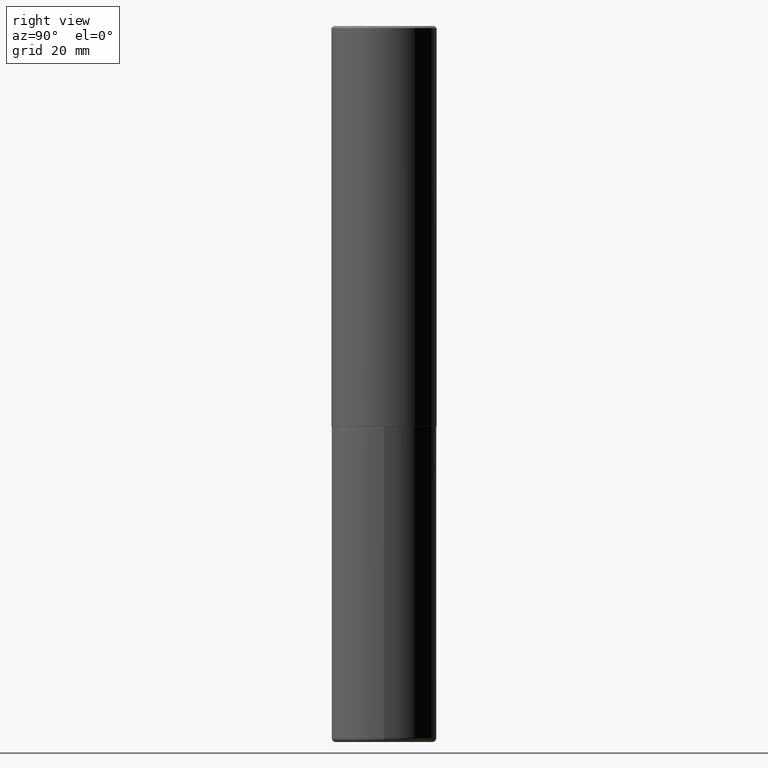
[diagram: clean part render]
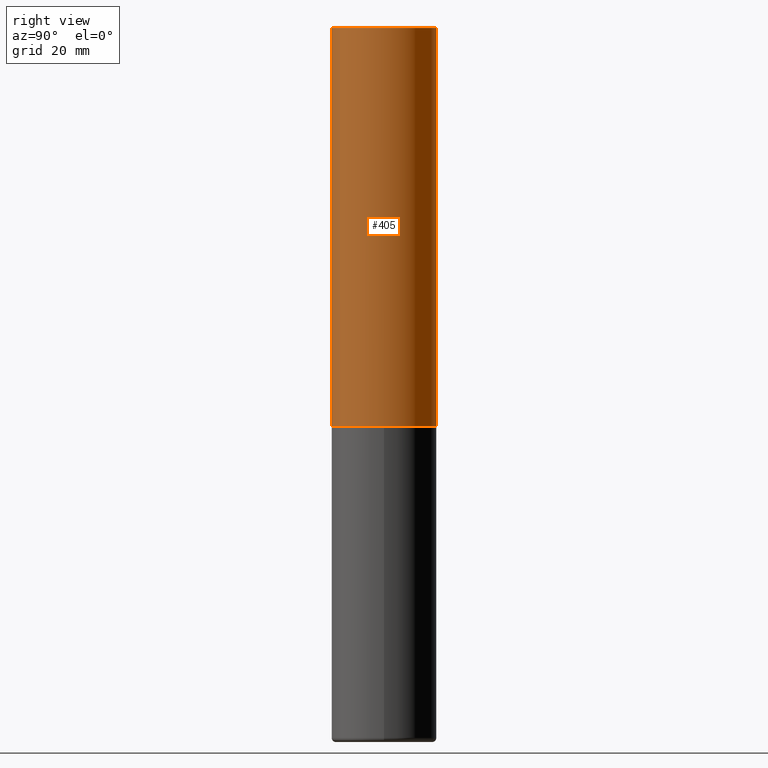
[diagram: same view with one face highlighted and labeled with its STEP entity id]
A machine part, right view. The second image highlights one B-rep face of the part: STEP entity #405.
In plain terms, the highlighted cylindrical surface (partial cylindrical patch) has radius 12.5006 mm, axis along (-0, 0, 1).
Its self-contained STEP definition (entity closure, byte-faithful):
#23 = VERTEX_POINT ( 'NONE', #371 ) ;
#25 = FACE_OUTER_BOUND ( 'NONE', #221, .T. ) ;
#28 = CARTESIAN_POINT ( 'NONE',  ( 0.000000000000000000, 0.000000000000000000, 0.000000000000000000 ) ) ;
#36 = EDGE_CURVE ( 'NONE', #66, #235, #104, .T. ) ;
#39 = VECTOR ( 'NONE', #86, 39.37007874015748143 ) ;
#48 = LINE ( 'NONE', #82, #39 ) ;
#66 = VERTEX_POINT ( 'NONE', #102 ) ;
#80 = VECTOR ( 'NONE', #95, 39.37007874015748143 ) ;
#82 = CARTESIAN_POINT ( 'NONE',  ( -3.436665081823296565E-15, -0.4921500000000000874, 1.717974658438411319E-15 ) ) ;
#86 = DIRECTION ( 'NONE',  ( -2.445976594451651672E-29, 3.490754157143982552E-15, 1.000000000000000000 ) ) ;
#95 = DIRECTION ( 'NONE',  ( -2.445976594451651672E-29, 3.490754157143982552E-15, 1.000000000000000000 ) ) ;
#101 = CYLINDRICAL_SURFACE ( 'NONE', #352, 0.4921500000000000874 ) ;
#102 = CARTESIAN_POINT ( 'NONE',  ( -3.436665081823207030E-15, -0.4921500000000134101, -3.739099999999998758 ) ) ;
#104 = CIRCLE ( 'NONE', #331, 0.4921500000000003650 ) ;
#110 = ORIENTED_EDGE ( 'NONE', *, *, #307, .T. ) ;
#118 = AXIS2_PLACEMENT_3D ( 'NONE', #335, #238, #370 ) ;
#129 = DIRECTION ( 'NONE',  ( -2.445976594451651952E-29, 3.490754157143982552E-15, 1.000000000000000000 ) ) ;
#150 = EDGE_CURVE ( 'NONE', #168, #23, #262, .T. ) ;
#155 = CARTESIAN_POINT ( 'NONE',  ( 3.496936074043380229E-15, 0.4921499999999873198, -3.739100000000002311 ) ) ;
#156 = CARTESIAN_POINT ( 'NONE',  ( 9.145751084314172604E-29, -1.305227886897706845E-14, -3.739100000000000534 ) ) ;
#168 = VERTEX_POINT ( 'NONE', #400 ) ;
#186 = CARTESIAN_POINT ( 'NONE',  ( 3.496936074043333291E-15, 0.4921500000000000874, -1.717974658438411319E-15 ) ) ;
#202 = EDGE_CURVE ( 'NONE', #66, #168, #48, .T. ) ;
#221 = EDGE_LOOP ( 'NONE', ( #363, #110, #292, #361 ) ) ;
#222 = DIRECTION ( 'NONE',  ( -6.982962677686265922E-15, -1.000000000000000000, 3.490754157143982552E-15 ) ) ;
#235 = VERTEX_POINT ( 'NONE', #155 ) ;
#238 = DIRECTION ( 'NONE',  ( -2.445976594451651952E-29, 3.490754157143982552E-15, 1.000000000000000000 ) ) ;
#262 = CIRCLE ( 'NONE', #118, 0.4921499999999999209 ) ;
#280 = DIRECTION ( 'NONE',  ( -2.445976594451651952E-29, 3.490754157143982552E-15, 1.000000000000000000 ) ) ;
#292 = ORIENTED_EDGE ( 'NONE', *, *, #150, .F. ) ;
#307 = EDGE_CURVE ( 'NONE', #235, #23, #382, .T. ) ;
#331 = AXIS2_PLACEMENT_3D ( 'NONE', #156, #280, #347 ) ;
#335 = CARTESIAN_POINT ( 'NONE',  ( 4.891953188903329688E-31, -6.981508314288001687E-17, -0.02000000000000010797 ) ) ;
#347 = DIRECTION ( 'NONE',  ( -6.982962677686265922E-15, -1.000000000000000000, 3.330506545156063496E-15 ) ) ;
#352 = AXIS2_PLACEMENT_3D ( 'NONE', #28, #129, #222 ) ;
#361 = ORIENTED_EDGE ( 'NONE', *, *, #202, .F. ) ;
#363 = ORIENTED_EDGE ( 'NONE', *, *, #36, .T. ) ;
#370 = DIRECTION ( 'NONE',  ( -6.982962677686265922E-15, -1.000000000000000000, 3.486624039460257331E-15 ) ) ;
#371 = CARTESIAN_POINT ( 'NONE',  ( 3.436665081823295777E-15, 0.4921499999999998098, -0.02000000000000182188 ) ) ;
#382 = LINE ( 'NONE', #186, #80 ) ;
#400 = CARTESIAN_POINT ( 'NONE',  ( -3.376394089603257868E-15, -0.4921499999999999764, -0.01999999999999839059 ) ) ;
#405 = ADVANCED_FACE ( 'NONE', ( #25 ), #101, .T. ) ;